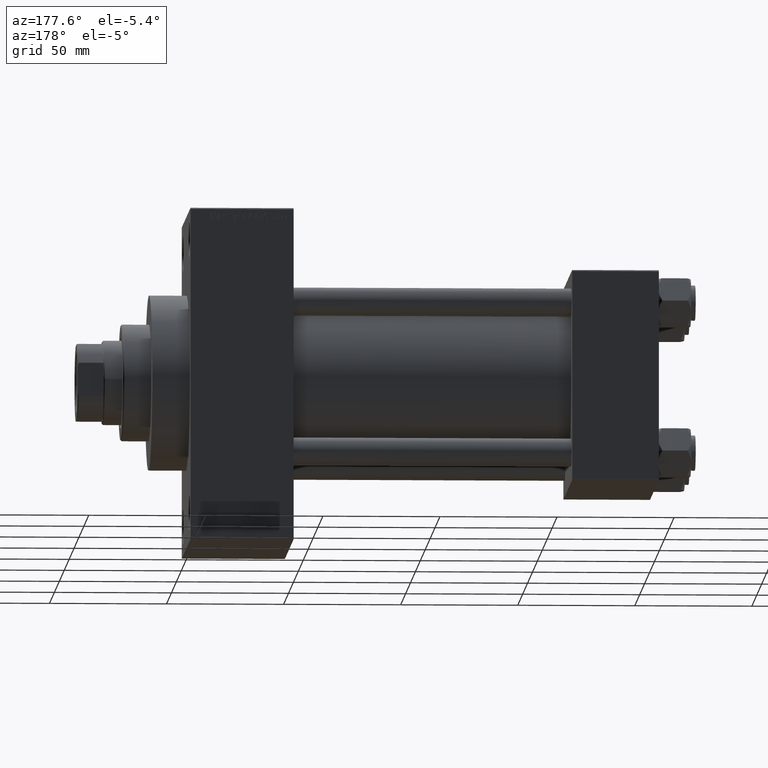
[diagram: clean part render]
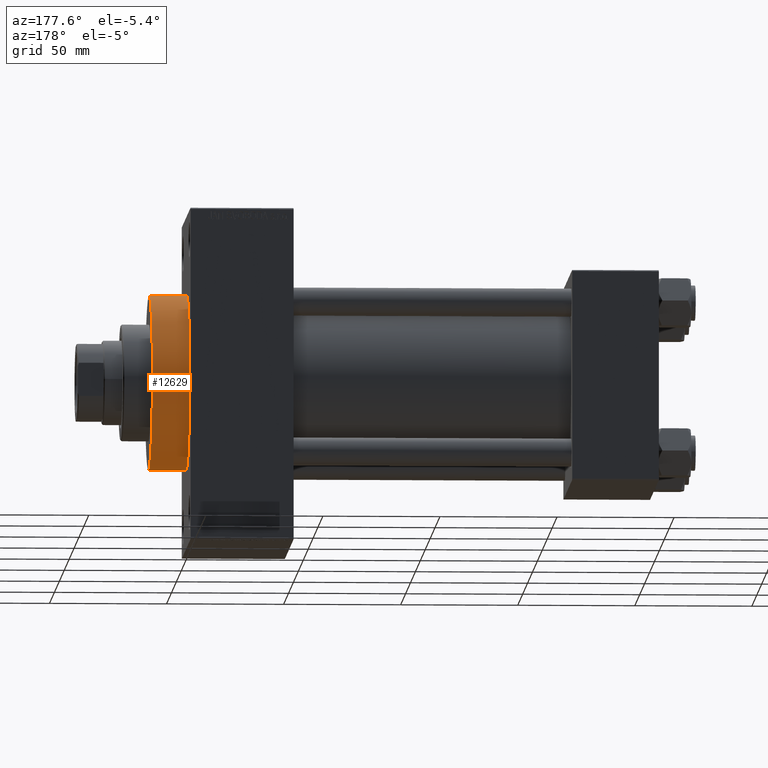
[diagram: same view with one face highlighted and labeled with its STEP entity id]
A machine part, auxiliary view. The second image highlights one B-rep face of the part: STEP entity #12629.
In plain terms, the highlighted cylindrical surface (partial cylindrical patch) has radius 37.5 mm, axis along (-1, -0, -0).
Its self-contained STEP definition (entity closure, byte-faithful):
#551 = DIRECTION ( 'NONE',  ( 1.000000000000000000, 0.000000000000000000, 0.000000000000000000 ) ) ;
#1436 = CARTESIAN_POINT ( 'NONE',  ( 216.0000000000000284, 4.592425496802575156E-15, -37.50000000000000711 ) ) ;
#1884 = VERTEX_POINT ( 'NONE', #1436 ) ;
#1966 = EDGE_CURVE ( 'NONE', #41505, #8101, #42946, .T. ) ;
#2453 = CARTESIAN_POINT ( 'NONE',  ( 216.0000000000000284, 4.592425496802575156E-15, -37.50000000000000711 ) ) ;
#2618 = VECTOR ( 'NONE', #21242, 1000.000000000000000 ) ;
#2947 = FACE_OUTER_BOUND ( 'NONE', #19618, .T. ) ;
#5096 = CARTESIAN_POINT ( 'NONE',  ( 200.0000000000000000, 4.592425496802575156E-15, -37.50000000000000711 ) ) ;
#8101 = VERTEX_POINT ( 'NONE', #29448 ) ;
#12629 = ADVANCED_FACE ( 'NONE', ( #2947 ), #17523, .T. ) ;
#12720 = LINE ( 'NONE', #2453, #27055 ) ;
#13217 = CARTESIAN_POINT ( 'NONE',  ( 216.0000000000000284, 0.000000000000000000, 0.000000000000000000 ) ) ;
#13697 = DIRECTION ( 'NONE',  ( 0.000000000000000000, 0.000000000000000000, 1.000000000000000000 ) ) ;
#14510 = EDGE_CURVE ( 'NONE', #1884, #41505, #26544, .T. ) ;
#17032 = DIRECTION ( 'NONE',  ( -1.000000000000000000, -0.000000000000000000, -0.000000000000000000 ) ) ;
#17425 = CIRCLE ( 'NONE', #41803, 37.50000000000000711 ) ;
#17523 = CYLINDRICAL_SURFACE ( 'NONE', #31039, 37.50000000000000711 ) ;
#18158 = AXIS2_PLACEMENT_3D ( 'NONE', #33264, #551, #33496 ) ;
#19032 = DIRECTION ( 'NONE',  ( 1.000000000000000000, 0.000000000000000000, 0.000000000000000000 ) ) ;
#19033 = VERTEX_POINT ( 'NONE', #5096 ) ;
#19618 = EDGE_LOOP ( 'NONE', ( #41430, #40809, #28317, #44640 ) ) ;
#20394 = DIRECTION ( 'NONE',  ( -1.000000000000000000, -0.000000000000000000, -0.000000000000000000 ) ) ;
#21242 = DIRECTION ( 'NONE',  ( -1.000000000000000000, -0.000000000000000000, -0.000000000000000000 ) ) ;
#23517 = EDGE_CURVE ( 'NONE', #19033, #8101, #17425, .T. ) ;
#24813 = CARTESIAN_POINT ( 'NONE',  ( 216.0000000000000284, 0.000000000000000000, 37.50000000000000711 ) ) ;
#26544 = CIRCLE ( 'NONE', #18158, 37.50000000000000711 ) ;
#27055 = VECTOR ( 'NONE', #17032, 1000.000000000000000 ) ;
#28317 = ORIENTED_EDGE ( 'NONE', *, *, #23517, .T. ) ;
#29448 = CARTESIAN_POINT ( 'NONE',  ( 200.0000000000000000, 0.000000000000000000, 37.50000000000000711 ) ) ;
#31039 = AXIS2_PLACEMENT_3D ( 'NONE', #13217, #20394, #13697 ) ;
#33264 = CARTESIAN_POINT ( 'NONE',  ( 216.0000000000000284, 0.000000000000000000, 0.000000000000000000 ) ) ;
#33496 = DIRECTION ( 'NONE',  ( 0.000000000000000000, 0.000000000000000000, -1.000000000000000000 ) ) ;
#36934 = DIRECTION ( 'NONE',  ( 0.000000000000000000, 0.000000000000000000, -1.000000000000000000 ) ) ;
#37217 = CARTESIAN_POINT ( 'NONE',  ( 216.0000000000000284, 0.000000000000000000, 37.50000000000000711 ) ) ;
#40043 = CARTESIAN_POINT ( 'NONE',  ( 200.0000000000000000, 0.000000000000000000, 0.000000000000000000 ) ) ;
#40809 = ORIENTED_EDGE ( 'NONE', *, *, #44482, .T. ) ;
#41430 = ORIENTED_EDGE ( 'NONE', *, *, #14510, .F. ) ;
#41505 = VERTEX_POINT ( 'NONE', #37217 ) ;
#41803 = AXIS2_PLACEMENT_3D ( 'NONE', #40043, #19032, #36934 ) ;
#42946 = LINE ( 'NONE', #24813, #2618 ) ;
#44482 = EDGE_CURVE ( 'NONE', #1884, #19033, #12720, .T. ) ;
#44640 = ORIENTED_EDGE ( 'NONE', *, *, #1966, .F. ) ;